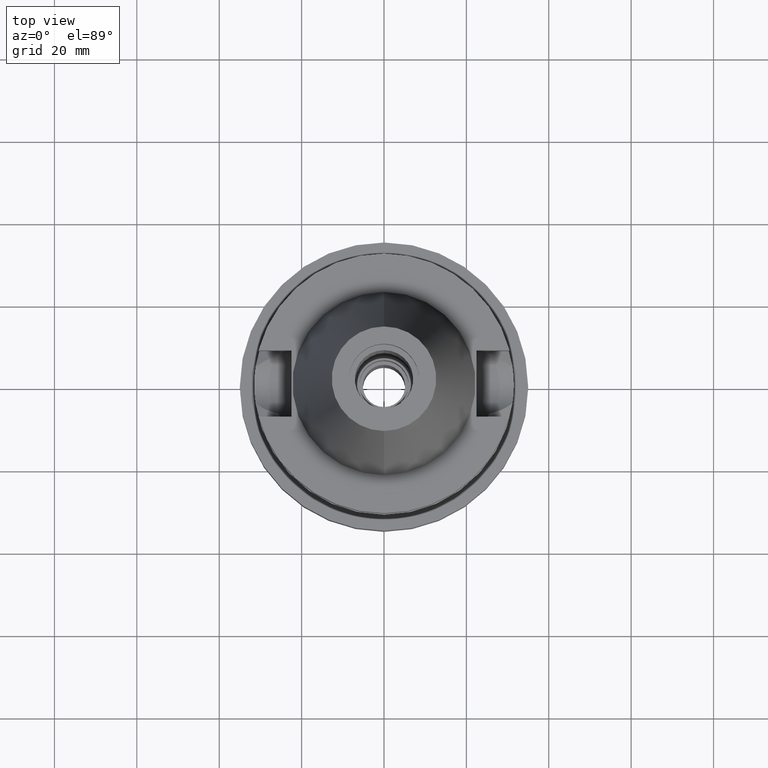
[diagram: clean part render]
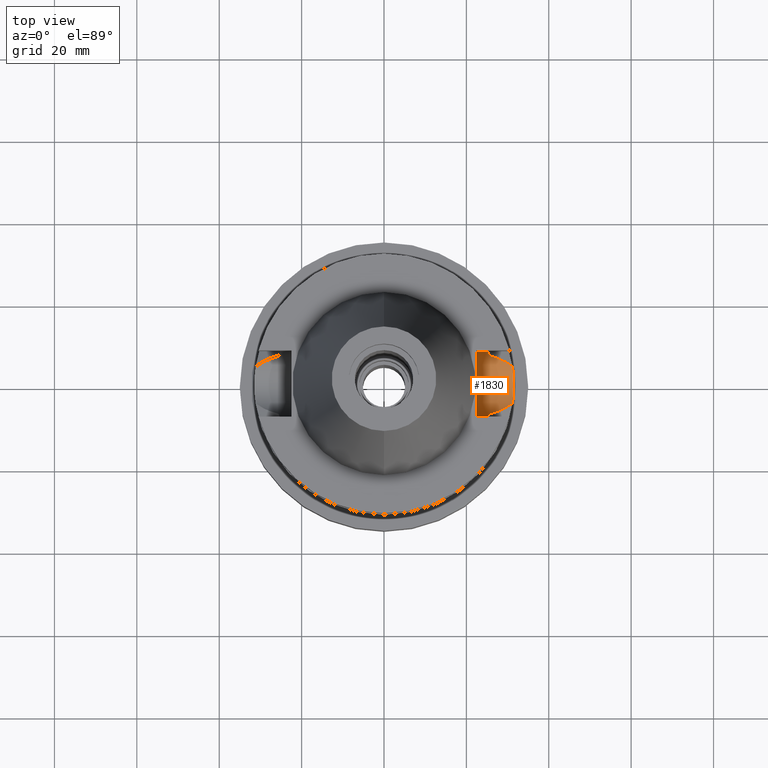
[diagram: same view with one face highlighted and labeled with its STEP entity id]
A machine part, top view. The second image highlights one B-rep face of the part: STEP entity #1830.
In plain terms, the highlighted cylindrical surface (edge-blend (fillet) strip) has radius 8.05 mm, axis along (1, 0, 0).
Its self-contained STEP definition (entity closure, byte-faithful):
#231=CARTESIAN_POINT('',(2.524772266958E1,-8.05E0,-1.495E1));
#232=CARTESIAN_POINT('',(2.524772266958E1,-8.05E0,-1.538836624581E1));
#233=CARTESIAN_POINT('',(2.527034454786E1,-7.979590381540E0,-1.625445348786E1));
#234=CARTESIAN_POINT('',(2.536984905223E1,-7.660468139848E0,-1.753893929126E1));
#235=CARTESIAN_POINT('',(2.547272591119E1,-7.310184643694E0,-1.835091906980E1));
#236=CARTESIAN_POINT('',(2.553175183775E1,-7.097862220093E0,-1.874774300139E1));
#314=CARTESIAN_POINT('',(2.25E1,0.E0,-1.495E1));
#315=DIRECTION('',(-1.E0,0.E0,0.E0));
#316=DIRECTION('',(0.E0,1.E0,0.E0));
#317=AXIS2_PLACEMENT_3D('',#314,#315,#316);
#322=CARTESIAN_POINT('',(2.25E1,0.E0,-1.495E1));
#323=DIRECTION('',(-1.E0,0.E0,0.E0));
#324=DIRECTION('',(0.E0,0.E0,-1.E0));
#325=AXIS2_PLACEMENT_3D('',#322,#323,#324);
#371=CARTESIAN_POINT('',(2.553175183775E1,7.097862220093E0,-1.874774300139E1));
#372=CARTESIAN_POINT('',(2.547271859263E1,7.310210969323E0,-1.835086986803E1));
#373=CARTESIAN_POINT('',(2.536983504485E1,7.660514361435E0,-1.753881631251E1));
#374=CARTESIAN_POINT('',(2.527033693534E1,7.979614138128E0,-1.625429252706E1));
#375=CARTESIAN_POINT('',(2.524772266958E1,8.05E0,-1.538829690304E1));
#376=CARTESIAN_POINT('',(2.524772266958E1,8.05E0,-1.495E1));
#514=CARTESIAN_POINT('',(3.117899877609E1,-4.485536235554E0,-2.163449434733E1));
#515=CARTESIAN_POINT('',(3.092594282280E1,-4.677521852962E0,-2.150566508982E1));
#516=CARTESIAN_POINT('',(3.037410866244E1,-5.060389796475E0,-2.122461587559E1));
#517=CARTESIAN_POINT('',(2.941094923244E1,-5.616555881648E0,-2.073352327861E1));
#518=CARTESIAN_POINT('',(2.829636038613E1,-6.150242194966E0,-2.016439604719E1));
#519=CARTESIAN_POINT('',(2.702063164435E1,-6.650762164049E0,-1.951176782559E1));
#520=CARTESIAN_POINT('',(2.604760204268E1,-6.956063838208E0,-1.901275971718E1));
#521=CARTESIAN_POINT('',(2.553175183775E1,-7.097862220093E0,-1.874774300139E1));
#526=DIRECTION('',(-1.E0,-1.551559937893E-14,0.E0));
#527=VECTOR('',#526,2.747722669580E0);
#528=CARTESIAN_POINT('',(2.524772266958E1,-8.05E0,-1.495E1));
#529=LINE('',#528,#527);
#533=DIRECTION('',(1.E0,-1.551559937893E-14,0.E0));
#534=VECTOR('',#533,2.747722669580E0);
#535=CARTESIAN_POINT('',(2.25E1,8.05E0,-1.495E1));
#536=LINE('',#535,#534);
#540=CARTESIAN_POINT('',(3.117899877609E1,-4.485536235554E0,-2.163449434733E1));
#541=CARTESIAN_POINT('',(3.124369053514E1,-4.035863293362E0,-2.193624107215E1));
#542=CARTESIAN_POINT('',(3.135874911415E1,-3.100302212878E0,-2.243556742385E1));
#543=CARTESIAN_POINT('',(3.147361182566E1,-1.571014716760E0,-2.289773181603E1));
#544=CARTESIAN_POINT('',(3.150000030214E1,-5.301829985770E-1,
-2.300000138098E1));
#545=CARTESIAN_POINT('',(3.150000030214E1,8.341638998881E-14,
-2.300000138098E1));
#550=CARTESIAN_POINT('',(3.150000030214E1,8.341638998881E-14,
-2.300000138098E1));
#551=CARTESIAN_POINT('',(3.150000030214E1,5.302328808262E-1,-2.300000138098E1));
#552=CARTESIAN_POINT('',(3.147360685943E1,1.571130481958E0,-2.289771242519E1));
#553=CARTESIAN_POINT('',(3.135873692170E1,3.100416459807E0,-2.243551683772E1));
#554=CARTESIAN_POINT('',(3.124368421051E1,4.035907255974E0,-2.193621157165E1));
#555=CARTESIAN_POINT('',(3.117899877609E1,4.485536235554E0,-2.163449434733E1));
#583=CARTESIAN_POINT('',(3.117899877609E1,4.485536235554E0,-2.163449434733E1));
#584=CARTESIAN_POINT('',(3.081770253870E1,4.759640362725E0,-2.145056061490E1));
#585=CARTESIAN_POINT('',(3.002826069268E1,5.292374476189E0,-2.104847468538E1));
#586=CARTESIAN_POINT('',(2.847601383129E1,6.083049426571E0,-2.025632279875E1));
#587=CARTESIAN_POINT('',(2.704767015888E1,6.642723142685E0,-1.952565871939E1));
#588=CARTESIAN_POINT('',(2.603750417814E1,6.958839568138E0,-1.900757196525E1));
#589=CARTESIAN_POINT('',(2.553175183775E1,7.097862220093E0,-1.874774300139E1));
#1356=VERTEX_POINT('',#550);
#1357=VERTEX_POINT('',#555);
#1358=VERTEX_POINT('',#540);
#1363=VERTEX_POINT('',#521);
#1364=VERTEX_POINT('',#231);
#1365=CARTESIAN_POINT('',(2.25E1,-8.05E0,-1.495E1));
#1366=VERTEX_POINT('',#1365);
#1367=CARTESIAN_POINT('',(2.25E1,0.E0,-2.3E1));
#1368=VERTEX_POINT('',#1367);
#1369=CARTESIAN_POINT('',(2.25E1,8.05E0,-1.495E1));
#1370=VERTEX_POINT('',#1369);
#1371=CARTESIAN_POINT('',(2.524772266958E1,8.05E0,-1.495E1));
#1372=VERTEX_POINT('',#1371);
#1373=VERTEX_POINT('',#371);
#1810=CARTESIAN_POINT('',(2.25E1,0.E0,-1.495E1));
#1811=DIRECTION('',(1.E0,0.E0,0.E0));
#1812=DIRECTION('',(0.E0,0.E0,-1.E0));
#1813=AXIS2_PLACEMENT_3D('',#1810,#1811,#1812);
#1814=CYLINDRICAL_SURFACE('',#1813,8.05E0);
#1816=ORIENTED_EDGE('',*,*,#1815,.F.);
#1818=ORIENTED_EDGE('',*,*,#1817,.F.);
#1819=ORIENTED_EDGE('',*,*,#1801,.T.);
#1820=ORIENTED_EDGE('',*,*,#1610,.F.);
#1821=ORIENTED_EDGE('',*,*,#1664,.T.);
#1822=ORIENTED_EDGE('',*,*,#1679,.F.);
#1823=ORIENTED_EDGE('',*,*,#1677,.F.);
#1824=ORIENTED_EDGE('',*,*,#1692,.T.);
#1825=ORIENTED_EDGE('',*,*,#1716,.F.);
#1827=ORIENTED_EDGE('',*,*,#1826,.F.);
#1828=EDGE_LOOP('',(#1816,#1818,#1819,#1820,#1821,#1822,#1823,#1824,#1825,
#1827));
#1829=FACE_OUTER_BOUND('',#1828,.F.);
#237=B_SPLINE_CURVE_WITH_KNOTS('',3,(#231,#232,#233,#234,#235,#236),
.UNSPECIFIED.,.F.,.F.,(4,1,1,4),(0.E0,3.333333333333E-1,6.666666666667E-1,1.E0),
.UNSPECIFIED.);
#318=CIRCLE('',#317,8.05E0);
#326=CIRCLE('',#325,8.05E0);
#377=B_SPLINE_CURVE_WITH_KNOTS('',3,(#371,#372,#373,#374,#375,#376),
.UNSPECIFIED.,.F.,.F.,(4,1,1,4),(0.E0,3.333333333333E-1,6.666666666667E-1,1.E0),
.UNSPECIFIED.);
#522=B_SPLINE_CURVE_WITH_KNOTS('',3,(#514,#515,#516,#517,#518,#519,#520,#521),
.UNSPECIFIED.,.F.,.F.,(4,1,1,1,1,4),(0.E0,2.E-1,4.E-1,6.E-1,8.E-1,1.E0),
.UNSPECIFIED.);
#546=B_SPLINE_CURVE_WITH_KNOTS('',3,(#540,#541,#542,#543,#544,#545),
.UNSPECIFIED.,.F.,.F.,(4,1,1,4),(0.E0,3.333333333333E-1,6.666666666667E-1,1.E0),
.UNSPECIFIED.);
#556=B_SPLINE_CURVE_WITH_KNOTS('',3,(#550,#551,#552,#553,#554,#555),
.UNSPECIFIED.,.F.,.F.,(4,1,1,4),(0.E0,3.333333333333E-1,6.666666666667E-1,1.E0),
.UNSPECIFIED.);
#590=B_SPLINE_CURVE_WITH_KNOTS('',3,(#583,#584,#585,#586,#587,#588,#589),
.UNSPECIFIED.,.F.,.F.,(4,1,1,1,4),(0.E0,2.5E-1,5.E-1,7.5E-1,1.E0),
.UNSPECIFIED.);
#1610=EDGE_CURVE('',#1364,#1363,#237,.T.);
#1664=EDGE_CURVE('',#1364,#1366,#529,.T.);
#1677=EDGE_CURVE('',#1370,#1368,#318,.T.);
#1679=EDGE_CURVE('',#1368,#1366,#326,.T.);
#1692=EDGE_CURVE('',#1370,#1372,#536,.T.);
#1716=EDGE_CURVE('',#1373,#1372,#377,.T.);
#1801=EDGE_CURVE('',#1358,#1363,#522,.T.);
#1815=EDGE_CURVE('',#1356,#1357,#556,.T.);
#1817=EDGE_CURVE('',#1358,#1356,#546,.T.);
#1826=EDGE_CURVE('',#1357,#1373,#590,.T.);
#1830=ADVANCED_FACE('',(#1829),#1814,.F.);